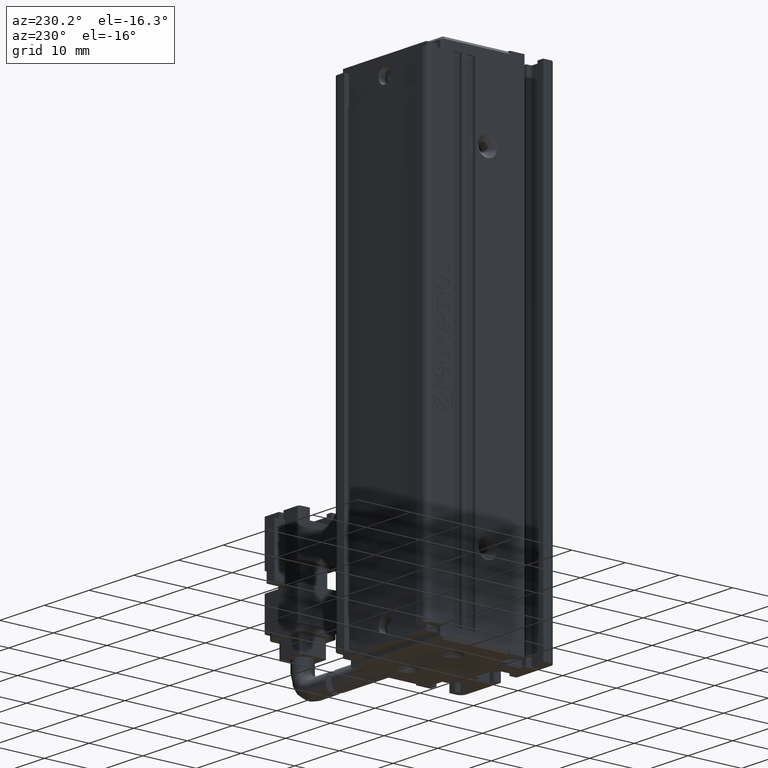
[diagram: clean part render]
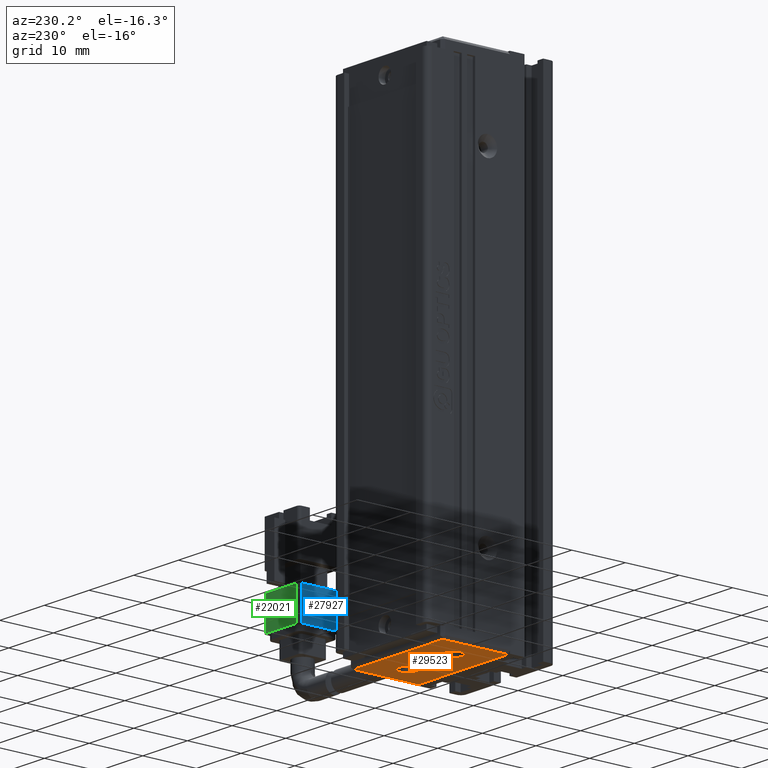
[diagram: same view with three faces highlighted in distinct colors, each labeled with its STEP entity id]
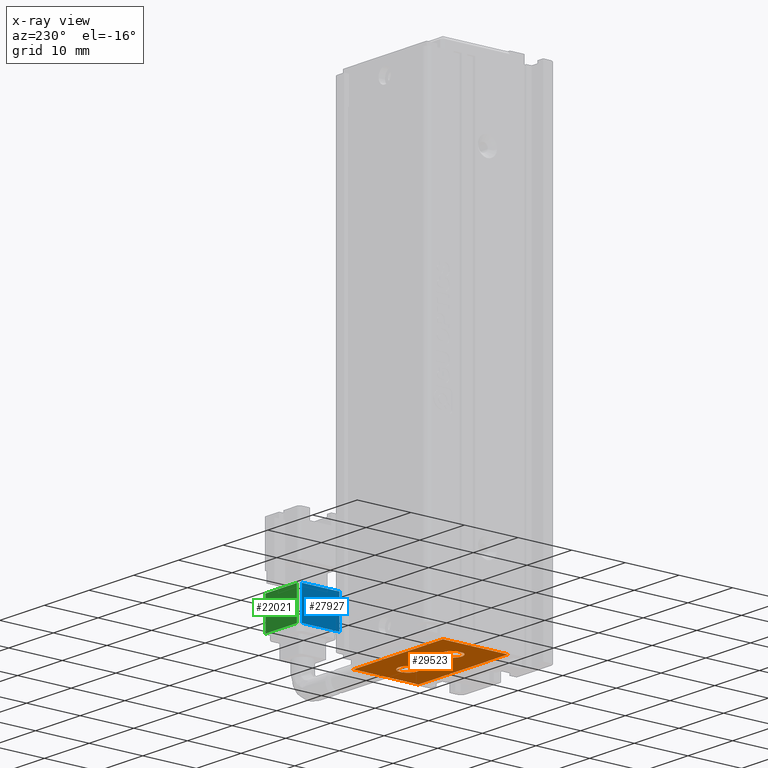
[diagram: x-ray of the same camera — body ghosted, the three highlighted faces saturated]
A machine part, auxiliary view with three faces highlighted in distinct colors.
The next image is the same camera in x-ray (body ghosted, the three faces saturated) — at least one of them is partly hidden behind the body in this view.
Their STEP definitions:

[orange] entity #29523 — the highlighted planar face has unit normal (0, 0, -1).
#683 = DIRECTION ( 'NONE',  ( -0.0000000000000000000, -1.000000000000000000, -0.0000000000000000000 ) ) ;
#1274 = DIRECTION ( 'NONE',  ( -1.000000000000000000, 0.0000000000000000000, -0.0000000000000000000 ) ) ;
#1832 = ORIENTED_EDGE ( 'NONE', *, *, #22665, .T. ) ;
#2261 = EDGE_CURVE ( 'NONE', #17892, #6284, #16421, .T. ) ;
#3522 = CARTESIAN_POINT ( 'NONE',  ( 50.92537974683541800, 25.79073232304837000, -160.0000000000000000 ) ) ;
#5060 = CARTESIAN_POINT ( 'NONE',  ( 30.92537974683542100, 19.49073232304837000, -160.0000000000000000 ) ) ;
#5463 = ORIENTED_EDGE ( 'NONE', *, *, #13515, .T. ) ;
#5600 = VERTEX_POINT ( 'NONE', #12367 ) ;
#6284 = VERTEX_POINT ( 'NONE', #5060 ) ;
#6407 = CARTESIAN_POINT ( 'NONE',  ( 40.92537974683542500, 19.49073232304837000, -160.0000000000000000 ) ) ;
#6574 = ORIENTED_EDGE ( 'NONE', *, *, #6618, .T. ) ;
#6618 = EDGE_CURVE ( 'NONE', #5600, #11761, #12037, .T. ) ;
#7234 = ORIENTED_EDGE ( 'NONE', *, *, #14367, .T. ) ;
#7353 = CARTESIAN_POINT ( 'NONE',  ( 30.92537974683542100, 31.59073232304836800, -160.0000000000000000 ) ) ;
#7426 = FACE_BOUND ( 'NONE', #29923, .T. ) ;
#7503 = LINE ( 'NONE', #11242, #12545 ) ;
#7641 = DIRECTION ( 'NONE',  ( 1.000000000000000000, -0.0000000000000000000, 0.0000000000000000000 ) ) ;
#7796 = DIRECTION ( 'NONE',  ( -0.0000000000000000000, -0.0000000000000000000, 1.000000000000000000 ) ) ;
#8199 = FACE_OUTER_BOUND ( 'NONE', #22117, .T. ) ;
#8208 = AXIS2_PLACEMENT_3D ( 'NONE', #8598, #20897, #8703 ) ;
#8598 = CARTESIAN_POINT ( 'NONE',  ( 35.92537974683542500, 25.59073232304837100, -160.0000000000045500 ) ) ;
#8703 = DIRECTION ( 'NONE',  ( -1.000000000000000000, 0.0000000000000000000, 0.0000000000000000000 ) ) ;
#8894 = AXIS2_PLACEMENT_3D ( 'NONE', #20490, #30339, #25648 ) ;
#8897 = CARTESIAN_POINT ( 'NONE',  ( 50.92537974683541800, 31.59073232304836800, -160.0000000000000000 ) ) ;
#9091 = DIRECTION ( 'NONE',  ( -0.0000000000000000000, -0.0000000000000000000, 1.000000000000000000 ) ) ;
#10488 = PLANE ( 'NONE',  #8894 ) ;
#10547 = AXIS2_PLACEMENT_3D ( 'NONE', #12878, #7796, #27555 ) ;
#10816 = DIRECTION ( 'NONE',  ( 0.0000000000000000000, 1.000000000000000000, 0.0000000000000000000 ) ) ;
#11242 = CARTESIAN_POINT ( 'NONE',  ( 30.92537974683542100, 25.79073232304837000, -160.0000000000000000 ) ) ;
#11266 = VERTEX_POINT ( 'NONE', #7353 ) ;
#11761 = VERTEX_POINT ( 'NONE', #17494 ) ;
#12037 = CIRCLE ( 'NONE', #23491, 1.700000000084855900 ) ;
#12367 = CARTESIAN_POINT ( 'NONE',  ( 34.22537974675056200, 25.59073232304837100, -160.0000000000045500 ) ) ;
#12545 = VECTOR ( 'NONE', #10816, 1000.000000000000000 ) ;
#12640 = VERTEX_POINT ( 'NONE', #8897 ) ;
#12878 = CARTESIAN_POINT ( 'NONE',  ( 45.92537974683542500, 25.59073232304836800, -160.0000000000000000 ) ) ;
#13515 = EDGE_CURVE ( 'NONE', #11761, #5600, #30050, .T. ) ;
#14024 = VECTOR ( 'NONE', #7641, 1000.000000000000000 ) ;
#14367 = EDGE_CURVE ( 'NONE', #14392, #30295, #22526, .T. ) ;
#14383 = EDGE_CURVE ( 'NONE', #30295, #14392, #20526, .T. ) ;
#14392 = VERTEX_POINT ( 'NONE', #26906 ) ;
#14536 = ORIENTED_EDGE ( 'NONE', *, *, #14383, .T. ) ;
#16421 = LINE ( 'NONE', #6407, #17598 ) ;
#16828 = VECTOR ( 'NONE', #683, 1000.000000000000000 ) ;
#17494 = CARTESIAN_POINT ( 'NONE',  ( 37.62537974692028800, 25.59073232304837100, -160.0000000000045500 ) ) ;
#17598 = VECTOR ( 'NONE', #1274, 1000.000000000000000 ) ;
#17892 = VERTEX_POINT ( 'NONE', #25137 ) ;
#18057 = EDGE_CURVE ( 'NONE', #12640, #17892, #24581, .T. ) ;
#18352 = CARTESIAN_POINT ( 'NONE',  ( 44.22537974685970900, 25.59073232304836800, -160.0000000000000000 ) ) ;
#18956 = DIRECTION ( 'NONE',  ( -1.000000000000000000, 0.0000000000000000000, 0.0000000000000000000 ) ) ;
#20000 = ORIENTED_EDGE ( 'NONE', *, *, #22253, .T. ) ;
#20490 = CARTESIAN_POINT ( 'NONE',  ( 40.92537974683542500, 25.79073232304837000, -160.0000000000000000 ) ) ;
#20526 = CIRCLE ( 'NONE', #10547, 1.699999999975714000 ) ;
#20831 = ORIENTED_EDGE ( 'NONE', *, *, #18057, .T. ) ;
#20897 = DIRECTION ( 'NONE',  ( -0.0000000000000000000, -0.0000000000000000000, 1.000000000000000000 ) ) ;
#22117 = EDGE_LOOP ( 'NONE', ( #20831, #22269, #20000, #1832 ) ) ;
#22253 = EDGE_CURVE ( 'NONE', #6284, #11266, #7503, .T. ) ;
#22269 = ORIENTED_EDGE ( 'NONE', *, *, #2261, .T. ) ;
#22526 = CIRCLE ( 'NONE', #24437, 1.699999999975714000 ) ;
#22665 = EDGE_CURVE ( 'NONE', #11266, #12640, #25271, .T. ) ;
#23491 = AXIS2_PLACEMENT_3D ( 'NONE', #26898, #9091, #18956 ) ;
#24437 = AXIS2_PLACEMENT_3D ( 'NONE', #27341, #25245, #30159 ) ;
#24581 = LINE ( 'NONE', #3522, #16828 ) ;
#24773 = CARTESIAN_POINT ( 'NONE',  ( 40.92537974683542500, 31.59073232304836100, -160.0000000000000000 ) ) ;
#25137 = CARTESIAN_POINT ( 'NONE',  ( 50.92537974683541800, 19.49073232304837000, -160.0000000000000000 ) ) ;
#25245 = DIRECTION ( 'NONE',  ( -0.0000000000000000000, -0.0000000000000000000, 1.000000000000000000 ) ) ;
#25271 = LINE ( 'NONE', #24773, #14024 ) ;
#25648 = DIRECTION ( 'NONE',  ( -1.000000000000000000, 0.0000000000000000000, -0.0000000000000000000 ) ) ;
#26898 = CARTESIAN_POINT ( 'NONE',  ( 35.92537974683542500, 25.59073232304837100, -160.0000000000045500 ) ) ;
#26906 = CARTESIAN_POINT ( 'NONE',  ( 47.62537974681113400, 25.59073232304836800, -160.0000000000000000 ) ) ;
#27341 = CARTESIAN_POINT ( 'NONE',  ( 45.92537974683542500, 25.59073232304836800, -160.0000000000000000 ) ) ;
#27555 = DIRECTION ( 'NONE',  ( -1.000000000000000000, 0.0000000000000000000, 0.0000000000000000000 ) ) ;
#29523 = ADVANCED_FACE ( 'NONE', ( #8199, #7426, #29940 ), #10488, .T. ) ;
#29923 = EDGE_LOOP ( 'NONE', ( #6574, #5463 ) ) ;
#29940 = FACE_BOUND ( 'NONE', #30788, .T. ) ;
#30050 = CIRCLE ( 'NONE', #8208, 1.700000000084855900 ) ;
#30159 = DIRECTION ( 'NONE',  ( -1.000000000000000000, 0.0000000000000000000, 0.0000000000000000000 ) ) ;
#30295 = VERTEX_POINT ( 'NONE', #18352 ) ;
#30339 = DIRECTION ( 'NONE',  ( 0.0000000000000000000, 0.0000000000000000000, -1.000000000000000000 ) ) ;
#30788 = EDGE_LOOP ( 'NONE', ( #14536, #7234 ) ) ;

[blue] entity #27927 — the highlighted planar face has unit normal (1, 0, 0).
#440 = CARTESIAN_POINT ( 'NONE',  ( 70.42537974683534700, 24.99073232304856900, -147.4499999999999900 ) ) ;
#474 = DIRECTION ( 'NONE',  ( -1.041348031262155300E-030, 5.551115123125780200E-017, 1.000000000000000000 ) ) ;
#4119 = VECTOR ( 'NONE', #474, 1000.000000000000000 ) ;
#4657 = AXIS2_PLACEMENT_3D ( 'NONE', #440, #20287, #30343 ) ;
#6524 = CARTESIAN_POINT ( 'NONE',  ( 70.42537974683536100, 17.99073232304856900, -147.4499999999999900 ) ) ;
#6701 = EDGE_CURVE ( 'NONE', #30728, #7565, #26377, .T. ) ;
#6926 = LINE ( 'NONE', #7111, #18536 ) ;
#7002 = DIRECTION ( 'NONE',  ( 3.304235192336770000E-015, -1.000000000000000000, 5.551115123125780200E-017 ) ) ;
#7111 = CARTESIAN_POINT ( 'NONE',  ( 70.42537974683534700, 24.99073232304856900, -141.4499999999999900 ) ) ;
#7115 = EDGE_CURVE ( 'NONE', #24272, #30728, #6926, .T. ) ;
#7565 = VERTEX_POINT ( 'NONE', #6524 ) ;
#7985 = PLANE ( 'NONE',  #4657 ) ;
#8057 = CARTESIAN_POINT ( 'NONE',  ( 70.42537974683536100, 17.99073232304856900, -141.4499999999999900 ) ) ;
#9757 = EDGE_LOOP ( 'NONE', ( #16493, #23113, #17189, #15678 ) ) ;
#12350 = EDGE_CURVE ( 'NONE', #15067, #24272, #21558, .T. ) ;
#14154 = VECTOR ( 'NONE', #29534, 1000.000000000000000 ) ;
#15036 = DIRECTION ( 'NONE',  ( 1.041348031262155300E-030, -5.551115123125780200E-017, -1.000000000000000000 ) ) ;
#15067 = VERTEX_POINT ( 'NONE', #25952 ) ;
#15327 = FACE_OUTER_BOUND ( 'NONE', #9757, .T. ) ;
#15678 = ORIENTED_EDGE ( 'NONE', *, *, #7115, .F. ) ;
#16493 = ORIENTED_EDGE ( 'NONE', *, *, #12350, .F. ) ;
#17189 = ORIENTED_EDGE ( 'NONE', *, *, #6701, .F. ) ;
#18536 = VECTOR ( 'NONE', #7002, 1000.000000000000000 ) ;
#19594 = LINE ( 'NONE', #27376, #14154 ) ;
#20287 = DIRECTION ( 'NONE',  ( 1.000000000000000000, 3.180326372624140700E-015, 8.648044530266590200E-031 ) ) ;
#21558 = LINE ( 'NONE', #25253, #4119 ) ;
#23113 = ORIENTED_EDGE ( 'NONE', *, *, #28448, .F. ) ;
#24272 = VERTEX_POINT ( 'NONE', #30759 ) ;
#25253 = CARTESIAN_POINT ( 'NONE',  ( 70.42537974683534700, 24.99073232304856900, -147.4499999999999900 ) ) ;
#25952 = CARTESIAN_POINT ( 'NONE',  ( 70.42537974683534700, 24.99073232304856900, -147.4499999999999900 ) ) ;
#26377 = LINE ( 'NONE', #27440, #30680 ) ;
#27376 = CARTESIAN_POINT ( 'NONE',  ( 70.42537974683534700, 24.99073232304856900, -147.4499999999999900 ) ) ;
#27440 = CARTESIAN_POINT ( 'NONE',  ( 70.42537974683536100, 17.99073232304856900, -147.4499999999999900 ) ) ;
#27927 = ADVANCED_FACE ( 'NONE', ( #15327 ), #7985, .F. ) ;
#28448 = EDGE_CURVE ( 'NONE', #7565, #15067, #19594, .T. ) ;
#29534 = DIRECTION ( 'NONE',  ( -3.180326372624140700E-015, 1.000000000000000000, -5.551115123125780200E-017 ) ) ;
#30343 = DIRECTION ( 'NONE',  ( 3.180326372624140700E-015, -1.000000000000000000, 5.551115123125780200E-017 ) ) ;
#30680 = VECTOR ( 'NONE', #15036, 1000.000000000000000 ) ;
#30728 = VERTEX_POINT ( 'NONE', #8057 ) ;
#30759 = CARTESIAN_POINT ( 'NONE',  ( 70.42537974683534700, 24.99073232304856900, -141.4499999999999900 ) ) ;

[green] entity #22021 — the highlighted planar face has unit normal (0, -1, 0).
#471 = FACE_OUTER_BOUND ( 'NONE', #27396, .T. ) ;
#536 = DIRECTION ( 'NONE',  ( -1.000000000000000000, -3.304235192336770000E-015, -8.579261317967046800E-031 ) ) ;
#602 = LINE ( 'NONE', #28586, #1381 ) ;
#1199 = DIRECTION ( 'NONE',  ( -1.041348031262155300E-030, 5.551115123125780200E-017, 1.000000000000000000 ) ) ;
#1362 = VERTEX_POINT ( 'NONE', #17974 ) ;
#1381 = VECTOR ( 'NONE', #23893, 1000.000000000000000 ) ;
#1708 = ORIENTED_EDGE ( 'NONE', *, *, #23765, .F. ) ;
#2392 = VERTEX_POINT ( 'NONE', #4440 ) ;
#3403 = VECTOR ( 'NONE', #1199, 1000.000000000000000 ) ;
#4073 = EDGE_CURVE ( 'NONE', #1362, #2392, #602, .T. ) ;
#4403 = PLANE ( 'NONE',  #31976 ) ;
#4440 = CARTESIAN_POINT ( 'NONE',  ( 77.92537974683534700, 25.49073232304859000, -147.4499999999999900 ) ) ;
#4514 = VERTEX_POINT ( 'NONE', #13353 ) ;
#4729 = DIRECTION ( 'NONE',  ( -1.041348031262155300E-030, 5.551115123125780200E-017, 1.000000000000000000 ) ) ;
#6928 = DIRECTION ( 'NONE',  ( 3.304235192336770000E-015, -1.000000000000000000, 5.551115123125780200E-017 ) ) ;
#7961 = ORIENTED_EDGE ( 'NONE', *, *, #4073, .F. ) ;
#9663 = EDGE_CURVE ( 'NONE', #4514, #1362, #27488, .T. ) ;
#10366 = CARTESIAN_POINT ( 'NONE',  ( 70.92537974683534700, 25.49073232304856900, -141.4499999999999900 ) ) ;
#11339 = CARTESIAN_POINT ( 'NONE',  ( 77.92537974683534700, 25.49073232304859000, -147.4499999999999900 ) ) ;
#12713 = VECTOR ( 'NONE', #30451, 1000.000000000000000 ) ;
#12967 = LINE ( 'NONE', #10366, #15282 ) ;
#13353 = CARTESIAN_POINT ( 'NONE',  ( 70.92537974683534700, 25.49073232304856900, -141.4499999999999900 ) ) ;
#14987 = EDGE_CURVE ( 'NONE', #23965, #4514, #12967, .T. ) ;
#15064 = ORIENTED_EDGE ( 'NONE', *, *, #9663, .F. ) ;
#15282 = VECTOR ( 'NONE', #536, 1000.000000000000000 ) ;
#17974 = CARTESIAN_POINT ( 'NONE',  ( 70.92537974683534700, 25.49073232304856900, -147.4499999999999900 ) ) ;
#21735 = CARTESIAN_POINT ( 'NONE',  ( 77.92537974683534700, 25.49073232304859000, -147.4499999999999900 ) ) ;
#22021 = ADVANCED_FACE ( 'NONE', ( #471 ), #4403, .F. ) ;
#23218 = ORIENTED_EDGE ( 'NONE', *, *, #14987, .F. ) ;
#23765 = EDGE_CURVE ( 'NONE', #2392, #23965, #32218, .T. ) ;
#23893 = DIRECTION ( 'NONE',  ( 1.000000000000000000, 3.304235192336770000E-015, 8.579261317967046800E-031 ) ) ;
#23965 = VERTEX_POINT ( 'NONE', #29453 ) ;
#27396 = EDGE_LOOP ( 'NONE', ( #1708, #7961, #15064, #23218 ) ) ;
#27488 = LINE ( 'NONE', #28155, #12713 ) ;
#28155 = CARTESIAN_POINT ( 'NONE',  ( 70.92537974683534700, 25.49073232304856900, -147.4499999999999900 ) ) ;
#28586 = CARTESIAN_POINT ( 'NONE',  ( 77.92537974683534700, 25.49073232304859000, -147.4499999999999900 ) ) ;
#29453 = CARTESIAN_POINT ( 'NONE',  ( 77.92537974683534700, 25.49073232304859000, -141.4499999999999900 ) ) ;
#30451 = DIRECTION ( 'NONE',  ( 1.041348031262155300E-030, -5.551115123125780200E-017, -1.000000000000000000 ) ) ;
#31976 = AXIS2_PLACEMENT_3D ( 'NONE', #21735, #6928, #4729 ) ;
#32218 = LINE ( 'NONE', #11339, #3403 ) ;